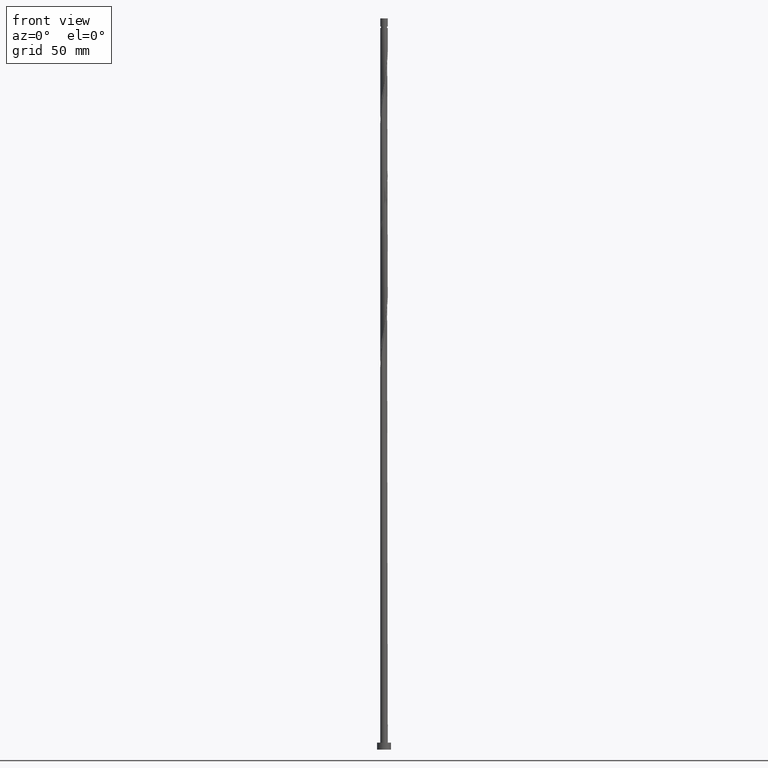
[diagram: clean part render]
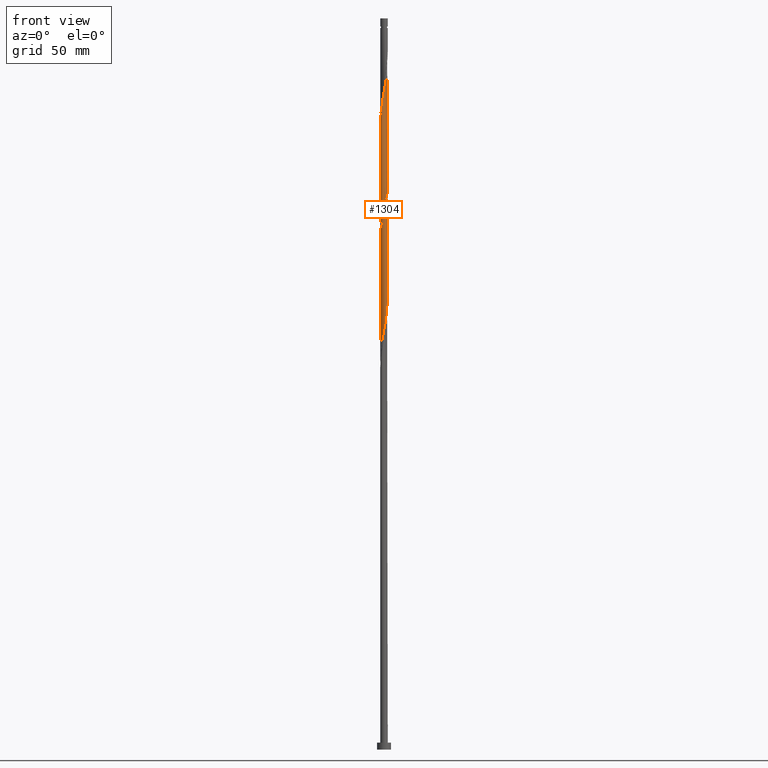
[diagram: same view with one face highlighted and labeled with its STEP entity id]
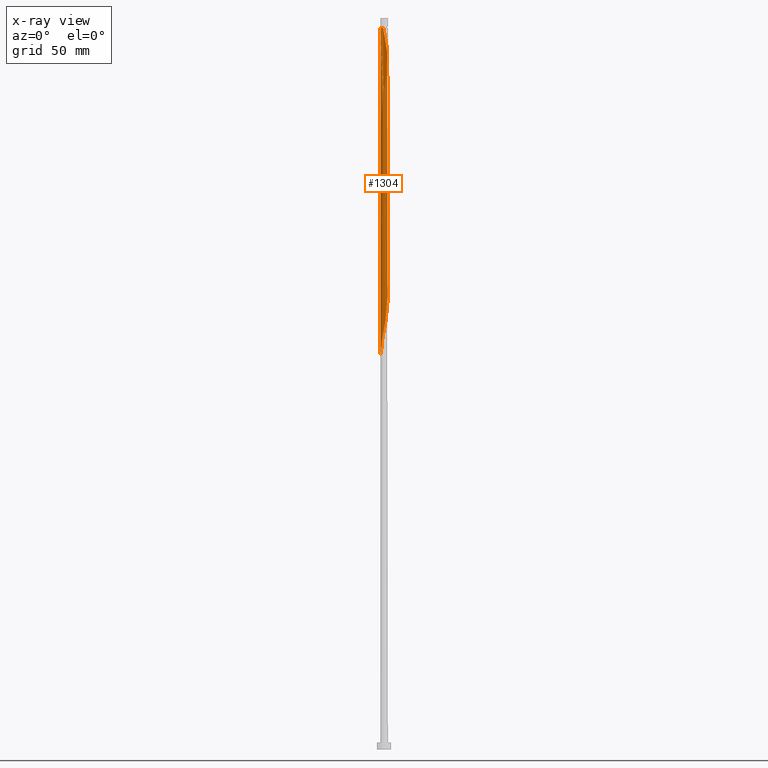
[diagram: x-ray of the same camera — body ghosted, the highlighted face saturated]
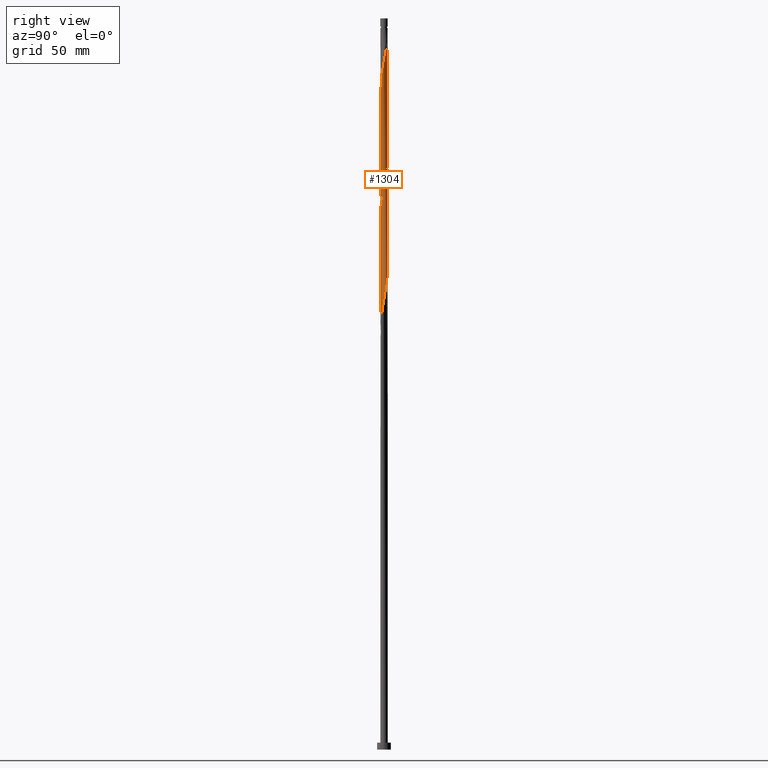
[diagram: same view with one face highlighted and labeled with its STEP entity id]
A machine part, front view. The second image highlights one B-rep face of the part: STEP entity #1304.
The next image is the same camera in x-ray: the body ghosted, the highlighted face saturated — about 0% of this face is hidden behind the body in this view.
A second angle (right view) of the same face is appended — the face is thin or edge-on in the first view.
In plain terms, the highlighted cylindrical surface (bore or boss wall) has radius 1.6 mm, axis along (-0, -0, -1).
Its self-contained STEP definition (entity closure, byte-faithful):
#1 = CARTESIAN_POINT ( 'NONE',  ( 1.506533183161097078, -0.5682054716227037394, 293.0856514521028657 ) ) ;
#7 = CARTESIAN_POINT ( 'NONE',  ( -1.599999999999999423, 0.1608060504414772773, 272.3593974510453108 ) ) ;
#10 = VERTEX_POINT ( 'NONE', #1308 ) ;
#42 = CARTESIAN_POINT ( 'NONE',  ( -1.110804381875366120, -1.165595691118479049, 174.9606514521028373 ) ) ;
#58 = CARTESIAN_POINT ( 'NONE',  ( -1.600000000000000089, 0.000000000000000000, 315.0000000000000000 ) ) ;
#95 = CARTESIAN_POINT ( 'NONE',  ( -1.568000000000002059, -0.3183959798741208824, 271.5231514521028089 ) ) ;
#96 = CARTESIAN_POINT ( 'NONE',  ( 1.457837195491573645, -0.6593259523492638330, 190.8981514521028942 ) ) ;
#101 = EDGE_CURVE ( 'NONE', #10, #683, #1705, .T. ) ;
#102 = CARTESIAN_POINT ( 'NONE',  ( 0.6593259523492638330, 1.457837195491573423, 256.5231514521028657 ) ) ;
#105 = CARTESIAN_POINT ( 'NONE',  ( -1.600000000000002753, 5.858366107198707680E-16, 269.8486343741968199 ) ) ;
#107 = CARTESIAN_POINT ( 'NONE',  ( 0.5682054716227021851, -1.506533183161094858, 236.8356514521029226 ) ) ;
#108 = FACE_OUTER_BOUND ( 'NONE', #1731, .T. ) ;
#116 = CARTESIAN_POINT ( 'NONE',  ( -1.532125388895208218, -0.4950671496374952629, 272.4606514521028657 ) ) ;
#117 = CARTESIAN_POINT ( 'NONE',  ( 1.603874611104793235, -0.1417248101107468905, 193.7106514521027805 ) ) ;
#120 = DIRECTION ( 'NONE',  ( -0.000000000000000000, -0.000000000000000000, -1.000000000000000000 ) ) ;
#124 = CARTESIAN_POINT ( 'NONE',  ( -0.03849969653773888806, -1.599536737110626827, 282.7731514521028089 ) ) ;
#126 = CARTESIAN_POINT ( 'NONE',  ( 0.7287000083576488096, -1.424428410914203358, 185.2731514521028657 ) ) ;
#133 = CARTESIAN_POINT ( 'NONE',  ( 0.9671945684681999555, -1.274572346603212836, 288.3981514521028657 ) ) ;
#135 = CARTESIAN_POINT ( 'NONE',  ( -0.4950671496374949854, -1.532125388895205775, 178.7106514521028657 ) ) ;
#175 = VERTEX_POINT ( 'NONE', #1227 ) ;
#199 = CIRCLE ( 'NONE', #836, 1.599999999999974110 ) ;
#209 = CARTESIAN_POINT ( 'NONE',  ( 1.599999999999999645, -0.1608060504414764447, 246.1093974510453393 ) ) ;
#233 = CARTESIAN_POINT ( 'NONE',  ( -1.600000000000000977, -0.1608060504414827729, 270.6869054531604775 ) ) ;
#234 = CARTESIAN_POINT ( 'NONE',  ( 0.4950671496374950964, 1.532125388895205775, 204.9606514521028657 ) ) ;
#239 = CARTESIAN_POINT ( 'NONE',  ( 0.1417248101107466685, 1.603874611104793235, 259.3356514521028089 ) ) ;
#242 = CARTESIAN_POINT ( 'NONE',  ( 1.550866023138777194, -0.3934648374044641961, 294.0231514521028657 ) ) ;
#243 = CARTESIAN_POINT ( 'NONE',  ( -0.8235847550610319034, -1.383549002087941071, 229.3356514521028373 ) ) ;
#252 = CARTESIAN_POINT ( 'NONE',  ( 1.274572346603210171, -0.9671945684681991784, 189.0231514521028373 ) ) ;
#256 = CARTESIAN_POINT ( 'NONE',  ( -0.5682054716227021851, 1.506533183161094858, 263.0856514521028657 ) ) ;
#261 = CARTESIAN_POINT ( 'NONE',  ( 1.595198863116457533, -0.2187242031862244585, 294.9606514521028089 ) ) ;
#262 = CARTESIAN_POINT ( 'NONE',  ( -1.600000000000000089, 0.000000000000000000, 315.0000000000000000 ) ) ;
#263 = CARTESIAN_POINT ( 'NONE',  ( 0.8891945450925955452, -1.342323638667311858, 186.2106514521028657 ) ) ;
#269 = CARTESIAN_POINT ( 'NONE',  ( -0.3934648374044629193, 1.550866023138775418, 262.1481514521028657 ) ) ;
#274 = CARTESIAN_POINT ( 'NONE',  ( -1.383549002087944180, -0.8235847550610327916, 274.3356514521029226 ) ) ;
#275 = DIRECTION ( 'NONE',  ( -0.000000000000000000, -0.000000000000000000, -1.000000000000000000 ) ) ;
#276 = CARTESIAN_POINT ( 'NONE',  ( -1.532125388895205997, 0.4950671496374948188, 218.0856514521028657 ) ) ;
#282 = CARTESIAN_POINT ( 'NONE',  ( 0.3183959798741211600, 1.567999999999999616, 258.3981514521028657 ) ) ;
#298 = CARTESIAN_POINT ( 'NONE',  ( -0.9671945684681991784, -1.274572346603210171, 175.8981514521028657 ) ) ;
#318 = EDGE_CURVE ( 'NONE', #459, #750, #1512, .T. ) ;
#364 = CARTESIAN_POINT ( 'NONE',  ( 1.274572346603210171, -0.9671945684681991784, 241.5231514521028657 ) ) ;
#372 = EDGE_CURVE ( 'NONE', #966, #683, #1070, .T. ) ;
#374 = CARTESIAN_POINT ( 'NONE',  ( -1.027395118105537630, 1.226564010271339100, 213.3981514521028373 ) ) ;
#383 = CARTESIAN_POINT ( 'NONE',  ( -0.5682054716227021851, 1.506533183161094858, 210.5856514521028373 ) ) ;
#390 = CARTESIAN_POINT ( 'NONE',  ( -0.3183959798741490266, 1.568000000000418170, 310.8981514521027520 ) ) ;
#391 = CARTESIAN_POINT ( 'NONE',  ( -1.603874611104793235, 0.1417248101107467517, 219.9606514521028373 ) ) ;
#395 = CARTESIAN_POINT ( 'NONE',  ( -1.027395118105537630, 1.226564010271339100, 265.8981514521028657 ) ) ;
#399 = CARTESIAN_POINT ( 'NONE',  ( 0.2187242031862245695, 1.595198863116457533, 308.0856514521028657 ) ) ;
#400 = CARTESIAN_POINT ( 'NONE',  ( 1.342323638667311636, 0.8891945450925954342, 199.3356514521028373 ) ) ;
#405 = CARTESIAN_POINT ( 'NONE',  ( -0.7287000083576490317, 1.424428410914202914, 264.0231514521028657 ) ) ;
#411 = CARTESIAN_POINT ( 'NONE',  ( 0.7287000083576508080, 1.424428410914205134, 305.2731514521029794 ) ) ;
#413 = CARTESIAN_POINT ( 'NONE',  ( 0.3934648374044628638, -1.550866023138775418, 235.8981514521028942 ) ) ;
#415 = VERTEX_POINT ( 'NONE', #390 ) ;
#451 =( BOUNDED_CURVE ( )  B_SPLINE_CURVE ( 2, ( #105, #233, #95, #116, #656, #274, #546, #1204, #911, #1216, #1797, #1226, #1377, #527, #124, #1081, #1779, #776, #1354, #930, #133, #1501, #793, #648, #685, #1, #242, #261, #1511, #666, #1491, #536, #1619, #784, #1648, #1660, #675, #1345, #411, #1366, #1195, #399, #940, #1092, #1768 ),
 .UNSPECIFIED., .F., .T. ) 
 B_SPLINE_CURVE_WITH_KNOTS ( ( 3, 2, 2, 2, 2, 2, 2, 2, 2, 2, 2, 2, 2, 2, 2, 2, 2, 2, 2, 2, 2, 2, 3 ),
 ( 0.5545303401299224166, 0.5625000000000000000, 0.5714285714285713969, 0.5803571428571427937, 0.5892857142857141906, 0.5982142857142855874, 0.6071428571428570953, 0.6160714285714284921, 0.6249999999999998890, 0.6339285714285712858, 0.6428571428571426827, 0.6517857142857141906, 0.6607142857142854764, 0.6696428571428569843, 0.6785714285714283811, 0.6874999999999997780, 0.6964285714285711748, 0.7053571428571425717, 0.7142857142857139685, 0.7232142857142853654, 0.7321428571428568732, 0.7410714285714282701, 0.7499999999999996669 ),
 .UNSPECIFIED. ) 
 CURVE ( )  GEOMETRIC_REPRESENTATION_ITEM ( )  RATIONAL_B_SPLINE_CURVE ( ( 0.9079949616362510412, 0.9039886423361145340, 0.9090909090909813361, 0.9033747362666559866, 0.9090909090909813361, 0.9033747362666559866, 0.9090909090909813361, 0.9033747362666559866, 0.9090909090909813361, 0.9033747362666559866, 0.9090909090909813361, 0.9033747362666559866, 0.9090909090909813361, 0.9033747362666559866, 0.9090909090909813361, 0.9033747362666559866, 0.9090909090909813361, 0.9033747362666559866, 0.9090909090909813361, 0.9033747362666559866, 0.9090909090909813361, 0.9033747362666559866, 0.9090909090909813361, 0.9033747362666559866, 0.9090909090909813361, 0.9033747362666559866, 0.9090909090909813361, 0.9033747362666559866, 0.9090909090909813361, 0.9033747362666559866, 0.9090909090909813361, 0.9033747362666559866, 0.9090909090909813361, 0.9033747362666559866, 0.9090909090909813361, 0.9033747362666559866, 0.9090909090909813361, 0.9033747362666559866, 0.9090909090909813361, 0.9033747362666559866, 0.9090909090909813361, 0.9033747362666559866, 0.9090909090909813361, 0.9033747362666560976, 0.9090909090909812251 ) ) 
 REPRESENTATION_ITEM ( '' )  );
#455 = CARTESIAN_POINT ( 'NONE',  ( -1.506533183161094858, -0.5682054716227021851, 171.2106514521028657 ) ) ;
#459 = VERTEX_POINT ( 'NONE', #1594 ) ;
#477 = CARTESIAN_POINT ( 'NONE',  ( 1.567999999999999616, -0.3183959798741210490, 245.2731514521028373 ) ) ;
#493 = CARTESIAN_POINT ( 'NONE',  ( 1.383549002087941071, -0.8235847550610320145, 242.4606514521028373 ) ) ;
#501 = CARTESIAN_POINT ( 'NONE',  ( -1.383549002087941293, 0.8235847550610319034, 216.2106514521028942 ) ) ;
#508 = CARTESIAN_POINT ( 'NONE',  ( -0.2187242031862235980, 1.595198863116455312, 208.7106514521028657 ) ) ;
#512 = CARTESIAN_POINT ( 'NONE',  ( 0.9671945684681994004, 1.274572346603210171, 254.6481514521027805 ) ) ;
#519 = CARTESIAN_POINT ( 'NONE',  ( 0.6593259523492638330, 1.457837195491573423, 204.0231514521028942 ) ) ;
#523 = CARTESIAN_POINT ( 'NONE',  ( -1.532125388895205997, 0.4950671496374948188, 270.5856514521028657 ) ) ;
#527 = CARTESIAN_POINT ( 'NONE',  ( -0.2187242031862242919, -1.595198863116457755, 281.8356514521029226 ) ) ;
#528 = CARTESIAN_POINT ( 'NONE',  ( 1.599536737110624163, 0.03849969653773817335, 194.6481514521028373 ) ) ;
#536 = CARTESIAN_POINT ( 'NONE',  ( 1.532125388895208218, 0.4950671496374951519, 298.7106514521028657 ) ) ;
#537 = CARTESIAN_POINT ( 'NONE',  ( -0.6593259523492636109, -1.457837195491573867, 230.2731514521028942 ) ) ;
#546 = CARTESIAN_POINT ( 'NONE',  ( -1.274572346603212836, -0.9671945684681999555, 275.2731514521029226 ) ) ;
#581 = EDGE_CURVE ( 'NONE', #459, #415, #451, .T. ) ;
#602 = ORIENTED_EDGE ( 'NONE', *, *, #1471, .F. ) ;
#642 = CARTESIAN_POINT ( 'NONE',  ( 0.8891945450925955452, -1.342323638667311858, 238.7106514521028373 ) ) ;
#648 = CARTESIAN_POINT ( 'NONE',  ( 1.342323638667313412, -0.8891945450925977656, 291.2106514521028089 ) ) ;
#649 = CARTESIAN_POINT ( 'NONE',  ( 0.1417248101107466685, 1.603874611104793235, 206.8356514521028373 ) ) ;
#656 = CARTESIAN_POINT ( 'NONE',  ( -1.457837195491576532, -0.6593259523492639440, 273.3981514521028089 ) ) ;
#658 = CARTESIAN_POINT ( 'NONE',  ( -1.567999999999999616, 0.3183959798741208269, 219.0231514521029226 ) ) ;
#666 = CARTESIAN_POINT ( 'NONE',  ( 1.603874611104796122, 0.1417248101107463354, 296.8356514521027520 ) ) ;
#668 = CARTESIAN_POINT ( 'NONE',  ( 1.110804381875366120, 1.165595691118479049, 201.2106514521028657 ) ) ;
#675 = CARTESIAN_POINT ( 'NONE',  ( 1.027395118105539629, 1.226564010271339988, 303.3981514521029226 ) ) ;
#676 = CARTESIAN_POINT ( 'NONE',  ( 0.5682054716227021851, -1.506533183161094858, 184.3356514521028373 ) ) ;
#683 = VERTEX_POINT ( 'NONE', #1322 ) ;
#685 = CARTESIAN_POINT ( 'NONE',  ( 1.424428410914205134, -0.7287000083576508080, 292.1481514521028089 ) ) ;
#686 = CARTESIAN_POINT ( 'NONE',  ( -0.6593259523492636109, -1.457837195491573867, 177.7731514521028373 ) ) ;
#696 = CARTESIAN_POINT ( 'NONE',  ( -1.342323638667311414, -0.8891945450925957672, 173.0856514521028373 ) ) ;
#711 = CARTESIAN_POINT ( 'NONE',  ( 1.424428410914203358, 0.7287000083576488096, 250.8981514521029226 ) ) ;
#736 = LINE ( 'NONE', #58, #1032 ) ;
#745 = AXIS2_PLACEMENT_3D ( 'NONE', #1770, #1062, #1631 ) ;
#750 = VERTEX_POINT ( 'NONE', #1689 ) ;
#754 = CARTESIAN_POINT ( 'NONE',  ( 1.165595691118479049, -1.110804381875366120, 240.5856514521028657 ) ) ;
#776 = CARTESIAN_POINT ( 'NONE',  ( 0.4950671496374952074, -1.532125388895208218, 285.5856514521028657 ) ) ;
#777 = CARTESIAN_POINT ( 'NONE',  ( -1.595198863116455312, -0.2187242031862234037, 221.8356514521028657 ) ) ;
#784 = CARTESIAN_POINT ( 'NONE',  ( 1.383549002087944180, 0.8235847550610325696, 300.5856514521028089 ) ) ;
#785 = CARTESIAN_POINT ( 'NONE',  ( -1.599536737110624163, -0.03849969653773833295, 220.8981514521028657 ) ) ;
#789 = CARTESIAN_POINT ( 'NONE',  ( -1.457837195491573867, 0.6593259523492636109, 269.6481514521029226 ) ) ;
#793 = CARTESIAN_POINT ( 'NONE',  ( 1.226564010271339988, -1.027395118105539629, 290.2731514521029226 ) ) ;
#795 = CARTESIAN_POINT ( 'NONE',  ( 0.3934648374044628638, -1.550866023138775418, 183.3981514521028942 ) ) ;
#807 = CARTESIAN_POINT ( 'NONE',  ( 1.532125388895205775, -0.4950671496374949854, 191.8356514521028373 ) ) ;
#817 = DIRECTION ( 'NONE',  ( -0.000000000000000000, -0.000000000000000000, -1.000000000000000000 ) ) ;
#818 = EDGE_CURVE ( 'NONE', #175, #415, #199, .T. ) ;
#819 = CARTESIAN_POINT ( 'NONE',  ( 0.03849969653773827050, -1.599536737110624163, 234.0231514521028657 ) ) ;
#821 = ORIENTED_EDGE ( 'NONE', *, *, #318, .T. ) ;
#824 = CARTESIAN_POINT ( 'NONE',  ( 0.4950671496374950964, 1.532125388895205775, 257.4606514521028657 ) ) ;
#830 = CARTESIAN_POINT ( 'NONE',  ( -1.226564010271339100, -1.027395118105537408, 174.0231514521028373 ) ) ;
#836 = AXIS2_PLACEMENT_3D ( 'NONE', #1783, #120, #1793 ) ;
#856 = CARTESIAN_POINT ( 'NONE',  ( -1.599536737110624163, -0.03849969653773833295, 168.3981514521028657 ) ) ;
#887 = DIRECTION ( 'NONE',  ( -0.000000000000000000, -0.000000000000000000, -1.000000000000000000 ) ) ;
#902 = CARTESIAN_POINT ( 'NONE',  ( 1.027395118105537408, -1.226564010271339100, 239.6481514521029510 ) ) ;
#911 = CARTESIAN_POINT ( 'NONE',  ( -1.027395118105539629, -1.226564010271340210, 277.1481514521028657 ) ) ;
#913 = CARTESIAN_POINT ( 'NONE',  ( -0.8891945450925957672, 1.342323638667311636, 212.4606514521028657 ) ) ;
#920 = CARTESIAN_POINT ( 'NONE',  ( -0.1417248101107468627, -1.603874611104793235, 233.0856514521028657 ) ) ;
#926 = CARTESIAN_POINT ( 'NONE',  ( 1.342323638667311636, 0.8891945450925954342, 251.8356514521028373 ) ) ;
#930 = CARTESIAN_POINT ( 'NONE',  ( 0.8235847550610325696, -1.383549002087944180, 287.4606514521027520 ) ) ;
#932 = CARTESIAN_POINT ( 'NONE',  ( 1.595198863116455312, 0.2187242031862231817, 195.5856514521028657 ) ) ;
#940 = CARTESIAN_POINT ( 'NONE',  ( 0.03849969653773915174, 1.599536737110626827, 309.0231514521028657 ) ) ;
#942 = CARTESIAN_POINT ( 'NONE',  ( 1.567999999999999616, -0.3183959798741210490, 192.7731514521029226 ) ) ;
#947 = CARTESIAN_POINT ( 'NONE',  ( -1.567999999999999616, 0.3183959798741208269, 271.5231514521029226 ) ) ;
#953 = CARTESIAN_POINT ( 'NONE',  ( 1.550866023138775640, 0.3934648374044626418, 196.5231514521028657 ) ) ;
#962 = CARTESIAN_POINT ( 'NONE',  ( 1.599536737110624163, 0.03849969653773817335, 247.1481514521028373 ) ) ;
#966 = VERTEX_POINT ( 'NONE', #1262 ) ;
#976 = CARTESIAN_POINT ( 'NONE',  ( -1.600000000000000311, -1.828407256386870291E-16, 273.1976685300089116 ) ) ;
#985 = CARTESIAN_POINT ( 'NONE',  ( -0.8235847550610319034, -1.383549002087941071, 176.8356514521028657 ) ) ;
#1026 = CARTESIAN_POINT ( 'NONE',  ( 1.532125388895205775, -0.4950671496374949854, 244.3356514521028373 ) ) ;
#1030 = ORIENTED_EDGE ( 'NONE', *, *, #372, .F. ) ;
#1032 = VECTOR ( 'NONE', #887, 1000.000000000000000 ) ;
#1052 = CARTESIAN_POINT ( 'NONE',  ( -1.226564010271339100, -1.027395118105537408, 226.5231514521028942 ) ) ;
#1061 = CARTESIAN_POINT ( 'NONE',  ( 1.506533183161094858, 0.5682054716227020741, 197.4606514521028373 ) ) ;
#1062 = DIRECTION ( 'NONE',  ( -0.000000000000000000, -0.000000000000000000, -1.000000000000000000 ) ) ;
#1066 = CARTESIAN_POINT ( 'NONE',  ( 1.110804381875366120, 1.165595691118479049, 253.7106514521028373 ) ) ;
#1070 = LINE ( 'NONE', #1639, #1481 ) ;
#1071 = CARTESIAN_POINT ( 'NONE',  ( 1.424428410914203358, 0.7287000083576488096, 198.3981514521028373 ) ) ;
#1081 = CARTESIAN_POINT ( 'NONE',  ( 0.1417248101107464464, -1.603874611104796122, 283.7106514521028657 ) ) ;
#1083 = CARTESIAN_POINT ( 'NONE',  ( -0.3183959798741209379, -1.567999999999999616, 232.1481514521029226 ) ) ;
#1092 = CARTESIAN_POINT ( 'NONE',  ( -0.1417248101107395075, 1.603874611104795900, 309.9606514521028657 ) ) ;
#1094 = CARTESIAN_POINT ( 'NONE',  ( -0.3934648374044629193, 1.550866023138775418, 209.6481514521028373 ) ) ;
#1128 = CARTESIAN_POINT ( 'NONE',  ( -1.595198863116455312, -0.2187242031862234037, 169.3356514521028657 ) ) ;
#1159 = ORIENTED_EDGE ( 'NONE', *, *, #581, .F. ) ;
#1167 = ORIENTED_EDGE ( 'NONE', *, *, #101, .F. ) ;
#1195 = CARTESIAN_POINT ( 'NONE',  ( 0.3934648374044642516, 1.550866023138777194, 307.1481514521028657 ) ) ;
#1196 = CARTESIAN_POINT ( 'NONE',  ( 1.226564010271339100, 1.027395118105537408, 200.2731514521028373 ) ) ;
#1201 = CARTESIAN_POINT ( 'NONE',  ( -1.165595691118479049, 1.110804381875366120, 266.8356514521028657 ) ) ;
#1204 = CARTESIAN_POINT ( 'NONE',  ( -1.165595691118481492, -1.110804381875367230, 276.2106514521028657 ) ) ;
#1206 = CARTESIAN_POINT ( 'NONE',  ( 0.3183959798741211600, 1.567999999999999616, 205.8981514521028942 ) ) ;
#1216 = CARTESIAN_POINT ( 'NONE',  ( -0.8891945450925975436, -1.342323638667313412, 278.0856514521029226 ) ) ;
#1219 = CARTESIAN_POINT ( 'NONE',  ( 0.2187242031862232650, -1.595198863116455312, 182.4606514521028657 ) ) ;
#1226 = CARTESIAN_POINT ( 'NONE',  ( -0.5682054716227037394, -1.506533183161097078, 279.9606514521029226 ) ) ;
#1227 = CARTESIAN_POINT ( 'NONE',  ( -1.599999999999974110, 0.000000000000000000, 310.8981514521028657 ) ) ;
#1228 = CARTESIAN_POINT ( 'NONE',  ( -0.3183959798741209379, -1.567999999999999616, 179.6481514521028942 ) ) ;
#1250 = CARTESIAN_POINT ( 'NONE',  ( -1.600000000000000089, -2.175431490762337487E-15, 168.1976685300089684 ) ) ;
#1262 = CARTESIAN_POINT ( 'NONE',  ( 1.600000000000000089, 1.959434878635765230E-16, 310.8981514521028657 ) ) ;
#1268 = CARTESIAN_POINT ( 'NONE',  ( 1.506533183161094858, 0.5682054716227020741, 249.9606514521028373 ) ) ;
#1279 = CARTESIAN_POINT ( 'NONE',  ( -1.424428410914203358, -0.7287000083576490317, 172.1481514521028942 ) ) ;
#1294 = ORIENTED_EDGE ( 'NONE', *, *, #1629, .F. ) ;
#1304 = ADVANCED_FACE ( 'NONE', ( #108 ), #1379, .T. ) ;
#1308 = CARTESIAN_POINT ( 'NONE',  ( -1.600000000000000311, -1.828407256386870291E-16, 273.1976685300089116 ) ) ;
#1319 = CARTESIAN_POINT ( 'NONE',  ( 0.7287000083576488096, -1.424428410914203358, 237.7731514521028942 ) ) ;
#1322 = CARTESIAN_POINT ( 'NONE',  ( 1.600000000000000089, 2.003785095264794437E-15, 246.9476685300089400 ) ) ;
#1345 = CARTESIAN_POINT ( 'NONE',  ( 0.8891945450925979877, 1.342323638667313190, 304.3356514521028657 ) ) ;
#1346 = CARTESIAN_POINT ( 'NONE',  ( -0.7287000083576490317, 1.424428410914202914, 211.5231514521028657 ) ) ;
#1351 = CARTESIAN_POINT ( 'NONE',  ( -0.03849969653773843703, 1.599536737110624163, 260.2731514521028657 ) ) ;
#1354 = CARTESIAN_POINT ( 'NONE',  ( 0.6593259523492639440, -1.457837195491576532, 286.5231514521029226 ) ) ;
#1356 = CARTESIAN_POINT ( 'NONE',  ( -1.457837195491573867, 0.6593259523492636109, 217.1481514521028657 ) ) ;
#1366 = CARTESIAN_POINT ( 'NONE',  ( 0.5682054716227041835, 1.506533183161097078, 306.2106514521028657 ) ) ;
#1367 = CARTESIAN_POINT ( 'NONE',  ( -0.03849969653773843703, 1.599536737110624163, 207.7731514521029226 ) ) ;
#1377 = CARTESIAN_POINT ( 'NONE',  ( -0.3934648374044641406, -1.550866023138777194, 280.8981514521028657 ) ) ;
#1378 = CARTESIAN_POINT ( 'NONE',  ( -1.110804381875366120, -1.165595691118479049, 227.4606514521028942 ) ) ;
#1379 = CYLINDRICAL_SURFACE ( 'NONE', #745, 1.600000000000000089 ) ;
#1387 = CARTESIAN_POINT ( 'NONE',  ( 1.027395118105537408, -1.226564010271339100, 187.1481514521028657 ) ) ;
#1425 = VECTOR ( 'NONE', #275, 1000.000000000000000 ) ;
#1428 = ORIENTED_EDGE ( 'NONE', *, *, #372, .T. ) ;
#1446 = ORIENTED_EDGE ( 'NONE', *, *, #818, .T. ) ;
#1471 = EDGE_CURVE ( 'NONE', #175, #10, #736, .T. ) ;
#1481 = VECTOR ( 'NONE', #817, 1000.000000000000000 ) ;
#1484 = CARTESIAN_POINT ( 'NONE',  ( -1.550866023138775418, -0.3934648374044628638, 222.7731514521028657 ) ) ;
#1491 = CARTESIAN_POINT ( 'NONE',  ( 1.568000000000002059, 0.3183959798741206604, 297.7731514521028657 ) ) ;
#1492 = CARTESIAN_POINT ( 'NONE',  ( -1.506533183161094858, -0.5682054716227021851, 223.7106514521028657 ) ) ;
#1501 = CARTESIAN_POINT ( 'NONE',  ( 1.110804381875367230, -1.165595691118481492, 289.3356514521028657 ) ) ;
#1503 = CARTESIAN_POINT ( 'NONE',  ( 1.383549002087941071, -0.8235847550610320145, 189.9606514521028942 ) ) ;
#1511 = CARTESIAN_POINT ( 'NONE',  ( 1.599536737110626827, -0.03849969653773905459, 295.8981514521029226 ) ) ;
#1512 = LINE ( 'NONE', #262, #1425 ) ;
#1515 = CARTESIAN_POINT ( 'NONE',  ( 0.9671945684681994004, 1.274572346603210171, 202.1481514521028373 ) ) ;
#1524 = CARTESIAN_POINT ( 'NONE',  ( 1.165595691118479049, -1.110804381875366120, 188.0856514521028657 ) ) ;
#1528 = CARTESIAN_POINT ( 'NONE',  ( -0.2187242031862235980, 1.595198863116455312, 261.2106514521028657 ) ) ;
#1543 = CARTESIAN_POINT ( 'NONE',  ( 1.600000000000000311, 0.01925263546622229052, 247.0480312182340015 ) ) ;
#1562 = CARTESIAN_POINT ( 'NONE',  ( 1.550866023138775640, 0.3934648374044626418, 249.0231514521028373 ) ) ;
#1563 = CARTESIAN_POINT ( 'NONE',  ( -1.600000000000000311, -0.01925263546622245706, 168.2980312182340299 ) ) ;
#1569 = CARTESIAN_POINT ( 'NONE',  ( -1.550866023138775418, -0.3934648374044628638, 170.2731514521028373 ) ) ;
#1594 = CARTESIAN_POINT ( 'NONE',  ( -1.600000000000002531, 5.858366107198707680E-16, 269.8486343741968199 ) ) ;
#1596 = CARTESIAN_POINT ( 'NONE',  ( 1.457837195491573645, -0.6593259523492638330, 243.3981514521028657 ) ) ;
#1615 =( BOUNDED_CURVE ( )  B_SPLINE_CURVE ( 2, ( #1753, #209, #477, #1026, #1596, #493, #364, #754, #902, #642, #1319, #107, #413, #1762, #819, #920, #1083, #1650, #537, #243, #1663, #1378, #1052, #1769, #1630, #1492, #1484, #777, #785, #391, #658, #276, #1356, #501, #1620, #1640, #374, #913, #1346, #383, #1094, #508, #1367, #649, #1206, #234, #519, #1780, #1515, #668, #1196, #400, #1071, #1061, #953, #932, #528, #117, #942, #807, #96, #1503, #252, #1524, #1387, #263, #126, #676, #795, #1219, #1799, #1788, #1228, #135, #686, #985, #298, #42, #830, #696, #1279, #455, #1569, #1128, #856, #1563, #1250 ),
 .UNSPECIFIED., .F., .T. ) 
 B_SPLINE_CURVE_WITH_KNOTS ( ( 3, 2, 2, 2, 2, 2, 2, 2, 2, 2, 2, 2, 2, 2, 2, 2, 2, 2, 2, 2, 2, 2, 2, 2, 2, 2, 2, 2, 2, 2, 2, 2, 2, 2, 2, 2, 2, 2, 2, 2, 2, 2, 2, 3 ),
 ( 0.5545303401299220836, 0.5625000000000000000, 0.5714285714285713969, 0.5803571428571429047, 0.5892857142857143016, 0.5982142857142856984, 0.6071428571428570953, 0.6160714285714286031, 0.6250000000000000000, 0.6339285714285713969, 0.6428571428571429047, 0.6517857142857143016, 0.6607142857142856984, 0.6696428571428570953, 0.6785714285714286031, 0.6875000000000000000, 0.6964285714285713969, 0.7053571428571429047, 0.7142857142857143016, 0.7232142857142856984, 0.7321428571428570953, 0.7410714285714286031, 0.7500000000000000000, 0.7589285714285713969, 0.7678571428571429047, 0.7767857142857143016, 0.7857142857142856984, 0.7946428571428570953, 0.8035714285714286031, 0.8125000000000000000, 0.8214285714285713969, 0.8303571428571429047, 0.8392857142857143016, 0.8482142857142856984, 0.8571428571428570953, 0.8660714285714286031, 0.8750000000000000000, 0.8839285714285713969, 0.8928571428571429047, 0.9017857142857143016, 0.9107142857142856984, 0.9196428571428570953, 0.9285714285714286031, 0.9295303401299220836 ),
 .UNSPECIFIED. ) 
 CURVE ( )  GEOMETRIC_REPRESENTATION_ITEM ( )  RATIONAL_B_SPLINE_CURVE ( ( 0.9079949616362451570, 0.9039886423361080947, 0.9090909090909750079, 0.9033747362666497693, 0.9090909090909750079, 0.9033747362666497693, 0.9090909090909750079, 0.9033747362666497693, 0.9090909090909750079, 0.9033747362666497693, 0.9090909090909750079, 0.9033747362666497693, 0.9090909090909750079, 0.9033747362666497693, 0.9090909090909750079, 0.9033747362666497693, 0.9090909090909750079, 0.9033747362666497693, 0.9090909090909750079, 0.9033747362666497693, 0.9090909090909750079, 0.9033747362666497693, 0.9090909090909750079, 0.9033747362666497693, 0.9090909090909750079, 0.9033747362666497693, 0.9090909090909750079, 0.9033747362666497693, 0.9090909090909750079, 0.9033747362666497693, 0.9090909090909750079, 0.9033747362666497693, 0.9090909090909750079, 0.9033747362666497693, 0.9090909090909750079, 0.9033747362666497693, 0.9090909090909750079, 0.9033747362666497693, 0.9090909090909750079, 0.9033747362666497693, 0.9090909090909750079, 0.9033747362666497693, 0.9090909090909750079, 0.9033747362666497693, 0.9090909090909750079, 0.9033747362666497693, 0.9090909090909750079, 0.9033747362666497693, 0.9090909090909750079, 0.9033747362666497693, 0.9090909090909750079, 0.9033747362666497693, 0.9090909090909750079, 0.9033747362666497693, 0.9090909090909750079, 0.9033747362666497693, 0.9090909090909750079, 0.9033747362666497693, 0.9090909090909750079, 0.9033747362666497693, 0.9090909090909750079, 0.9033747362666497693, 0.9090909090909750079, 0.9033747362666497693, 0.9090909090909750079, 0.9033747362666497693, 0.9090909090909750079, 0.9033747362666497693, 0.9090909090909750079, 0.9033747362666497693, 0.9090909090909750079, 0.9033747362666497693, 0.9090909090909750079, 0.9033747362666497693, 0.9090909090909750079, 0.9033747362666497693, 0.9090909090909750079, 0.9033747362666497693, 0.9090909090909750079, 0.9033747362666497693, 0.9090909090909750079, 0.9033747362666497693, 0.9090909090909750079, 0.9033747362666497693, 0.9090909090909750079, 0.9084770030215167935, 0.9079949616362451570 ) ) 
 REPRESENTATION_ITEM ( '' )  );
#1619 = CARTESIAN_POINT ( 'NONE',  ( 1.457837195491576532, 0.6593259523492639440, 299.6481514521028657 ) ) ;
#1620 = CARTESIAN_POINT ( 'NONE',  ( -1.274572346603210171, 0.9671945684681989563, 215.2731514521028657 ) ) ;
#1629 = EDGE_CURVE ( 'NONE', #683, #750, #1615, .T. ) ;
#1630 = CARTESIAN_POINT ( 'NONE',  ( -1.424428410914203358, -0.7287000083576490317, 224.6481514521028657 ) ) ;
#1631 = DIRECTION ( 'NONE',  ( -1.000000000000000000, 0.000000000000000000, 0.000000000000000000 ) ) ;
#1635 = CARTESIAN_POINT ( 'NONE',  ( 1.226564010271339100, 1.027395118105537408, 252.7731514521028942 ) ) ;
#1639 = CARTESIAN_POINT ( 'NONE',  ( 1.600000000000000089, 1.959434878635765230E-16, 315.0000000000000000 ) ) ;
#1640 = CARTESIAN_POINT ( 'NONE',  ( -1.165595691118479049, 1.110804381875366120, 214.3356514521028657 ) ) ;
#1644 = CARTESIAN_POINT ( 'NONE',  ( -1.383549002087941293, 0.8235847550610319034, 268.7106514521028657 ) ) ;
#1648 = CARTESIAN_POINT ( 'NONE',  ( 1.274572346603213058, 0.9671945684681999555, 301.5231514521028657 ) ) ;
#1650 = CARTESIAN_POINT ( 'NONE',  ( -0.4950671496374949854, -1.532125388895205775, 231.2106514521028373 ) ) ;
#1655 = CARTESIAN_POINT ( 'NONE',  ( -0.8891945450925957672, 1.342323638667311636, 264.9606514521028657 ) ) ;
#1660 = CARTESIAN_POINT ( 'NONE',  ( 1.165595691118481492, 1.110804381875367230, 302.4606514521028657 ) ) ;
#1663 = CARTESIAN_POINT ( 'NONE',  ( -0.9671945684681991784, -1.274572346603210171, 228.3981514521028657 ) ) ;
#1668 = CARTESIAN_POINT ( 'NONE',  ( -1.274572346603210171, 0.9671945684681989563, 267.7731514521029226 ) ) ;
#1675 = CARTESIAN_POINT ( 'NONE',  ( 1.595198863116455312, 0.2187242031862231817, 248.0856514521028373 ) ) ;
#1689 = CARTESIAN_POINT ( 'NONE',  ( -1.600000000000000089, -2.175431490762337487E-15, 168.1976685300089684 ) ) ;
#1702 = CARTESIAN_POINT ( 'NONE',  ( 1.600000000000000089, 2.003785095264794437E-15, 246.9476685300089116 ) ) ;
#1705 =( BOUNDED_CURVE ( )  B_SPLINE_CURVE ( 2, ( #976, #7, #947, #523, #789, #1644, #1668, #1201, #395, #1655, #405, #256, #269, #1528, #1351, #239, #282, #824, #102, #1773, #512, #1066, #1635, #926, #711, #1268, #1562, #1675, #962, #1543, #1702 ),
 .UNSPECIFIED., .F., .T. ) 
 B_SPLINE_CURVE_WITH_KNOTS ( ( 3, 2, 2, 2, 2, 2, 2, 2, 2, 2, 2, 2, 2, 2, 2, 3 ),
 ( 0.4295303401299220836, 0.4375000000000000000, 0.4464285714285714524, 0.4553571428571428492, 0.4642857142857143016, 0.4732142857142856984, 0.4821428571428571508, 0.4910714285714285476, 0.5000000000000000000, 0.5089285714285713969, 0.5178571428571429047, 0.5267857142857143016, 0.5357142857142856984, 0.5446428571428570953, 0.5535714285714286031, 0.5545303401299220836 ),
 .UNSPECIFIED. ) 
 CURVE ( )  GEOMETRIC_REPRESENTATION_ITEM ( )  RATIONAL_B_SPLINE_CURVE ( ( 0.9079949616362449349, 0.9039886423361080947, 0.9090909090909750079, 0.9033747362666497693, 0.9090909090909750079, 0.9033747362666497693, 0.9090909090909750079, 0.9033747362666497693, 0.9090909090909750079, 0.9033747362666497693, 0.9090909090909750079, 0.9033747362666497693, 0.9090909090909750079, 0.9033747362666497693, 0.9090909090909750079, 0.9033747362666497693, 0.9090909090909750079, 0.9033747362666497693, 0.9090909090909750079, 0.9033747362666497693, 0.9090909090909750079, 0.9033747362666497693, 0.9090909090909750079, 0.9033747362666497693, 0.9090909090909750079, 0.9033747362666497693, 0.9090909090909750079, 0.9033747362666497693, 0.9090909090909750079, 0.9084770030215167935, 0.9079949616362451570 ) ) 
 REPRESENTATION_ITEM ( '' )  );
#1731 = EDGE_LOOP ( 'NONE', ( #602, #1446, #1159, #821, #1294, #1030, #1428, #1167 ) ) ;
#1753 = CARTESIAN_POINT ( 'NONE',  ( 1.600000000000000089, 2.003785095264794437E-15, 246.9476685300089116 ) ) ;
#1762 = CARTESIAN_POINT ( 'NONE',  ( 0.2187242031862232650, -1.595198863116455312, 234.9606514521028942 ) ) ;
#1768 = CARTESIAN_POINT ( 'NONE',  ( -0.3183959798741489711, 1.568000000000418170, 310.8981514521027520 ) ) ;
#1769 = CARTESIAN_POINT ( 'NONE',  ( -1.342323638667311414, -0.8891945450925957672, 225.5856514521028657 ) ) ;
#1770 = CARTESIAN_POINT ( 'NONE',  ( 0.000000000000000000, 0.000000000000000000, 315.0000000000000000 ) ) ;
#1773 = CARTESIAN_POINT ( 'NONE',  ( 0.8235847550610321255, 1.383549002087941071, 255.5856514521028373 ) ) ;
#1779 = CARTESIAN_POINT ( 'NONE',  ( 0.3183959798741208824, -1.568000000000002059, 284.6481514521028657 ) ) ;
#1780 = CARTESIAN_POINT ( 'NONE',  ( 0.8235847550610321255, 1.383549002087941071, 203.0856514521028657 ) ) ;
#1783 = CARTESIAN_POINT ( 'NONE',  ( 0.000000000000000000, 0.000000000000000000, 310.8981514521028657 ) ) ;
#1788 = CARTESIAN_POINT ( 'NONE',  ( -0.1417248101107468627, -1.603874611104793235, 180.5856514521028942 ) ) ;
#1793 = DIRECTION ( 'NONE',  ( -1.000000000000000000, 0.000000000000000000, 0.000000000000000000 ) ) ;
#1797 = CARTESIAN_POINT ( 'NONE',  ( -0.7287000083576505860, -1.424428410914205134, 279.0231514521028657 ) ) ;
#1799 = CARTESIAN_POINT ( 'NONE',  ( 0.03849969653773827050, -1.599536737110624163, 181.5231514521028373 ) ) ;